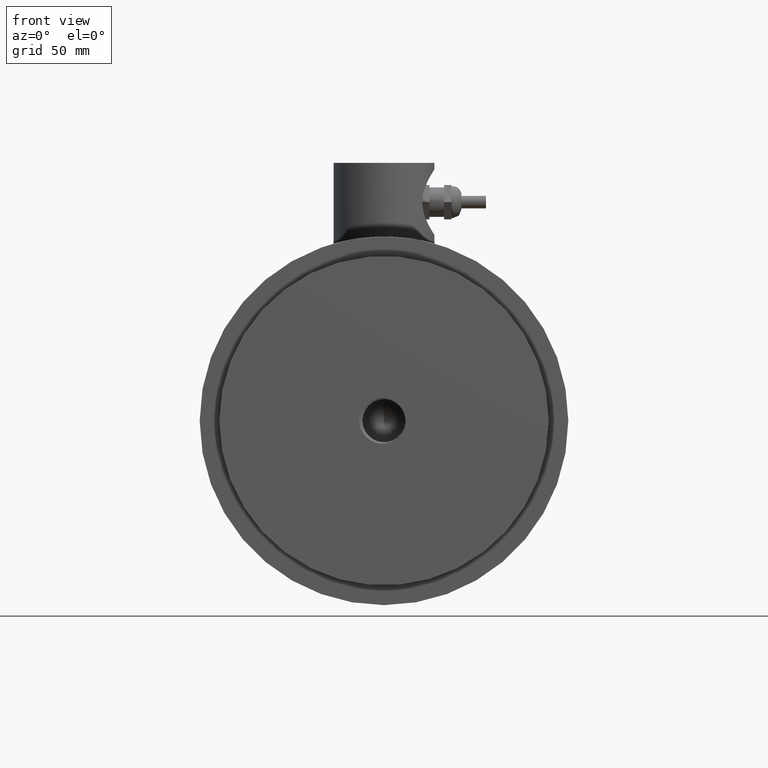
[diagram: clean part render]
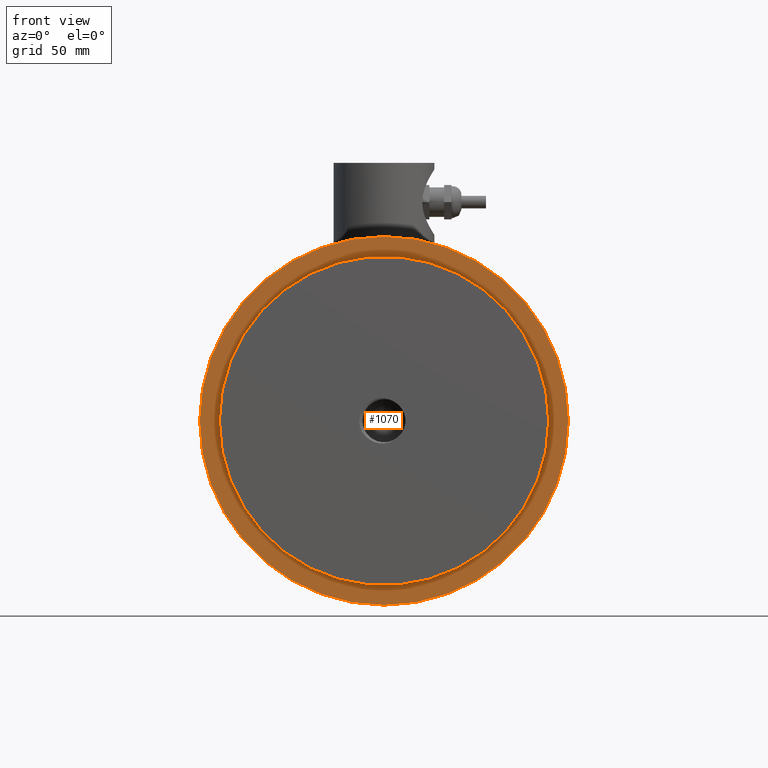
[diagram: same view with one face highlighted and labeled with its STEP entity id]
A machine part, front view. The second image highlights one B-rep face of the part: STEP entity #1070.
In plain terms, the highlighted planar face has unit normal (0, 1, 0).
Its self-contained STEP definition (entity closure, byte-faithful):
#87=FACE_BOUND('',#250,.T.);
#114=PLANE('',#1172);
#177=FACE_OUTER_BOUND('',#249,.T.);
#249=EDGE_LOOP('',(#957));
#250=EDGE_LOOP('',(#958));
#422=CIRCLE('',#1173,2.955);
#423=CIRCLE('',#1174,2.64);
#522=VERTEX_POINT('',#4342);
#523=VERTEX_POINT('',#4344);
#670=EDGE_CURVE('',#522,#522,#422,.T.);
#671=EDGE_CURVE('',#523,#523,#423,.T.);
#957=ORIENTED_EDGE('',*,*,#670,.F.);
#958=ORIENTED_EDGE('',*,*,#671,.T.);
#1070=ADVANCED_FACE('',(#177,#87),#114,.F.);
#1172=AXIS2_PLACEMENT_3D('',#4341,#1416,#1417);
#1173=AXIS2_PLACEMENT_3D('',#4343,#1418,#1419);
#1174=AXIS2_PLACEMENT_3D('',#4345,#1420,#1421);
#1416=DIRECTION('center_axis',(0.,1.,0.));
#1417=DIRECTION('ref_axis',(-1.,0.,0.));
#1418=DIRECTION('center_axis',(0.,1.,0.));
#1419=DIRECTION('ref_axis',(-1.,0.,0.));
#1420=DIRECTION('center_axis',(0.,1.,0.));
#1421=DIRECTION('ref_axis',(1.,0.,0.));
#4341=CARTESIAN_POINT('Origin',(0.,0.610236220472441,0.));
#4342=CARTESIAN_POINT('',(2.955,0.610236220472441,-3.61883129148043E-16));
#4343=CARTESIAN_POINT('Origin',(0.,0.610236220472441,0.));
#4344=CARTESIAN_POINT('',(-2.64,0.610236220472441,3.23306754974901E-16));
#4345=CARTESIAN_POINT('Origin',(0.,0.610236220472441,0.));